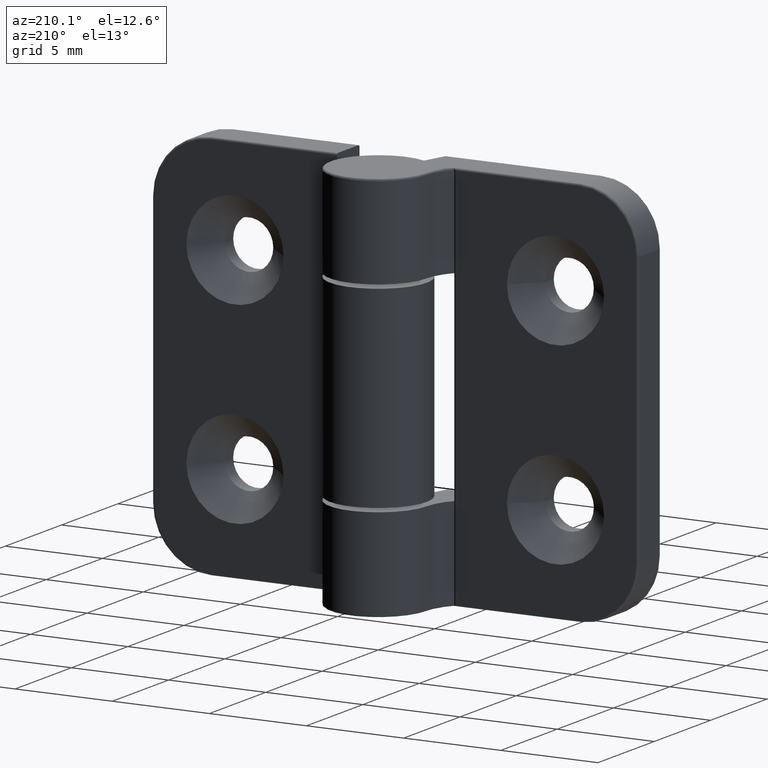
[diagram: clean part render]
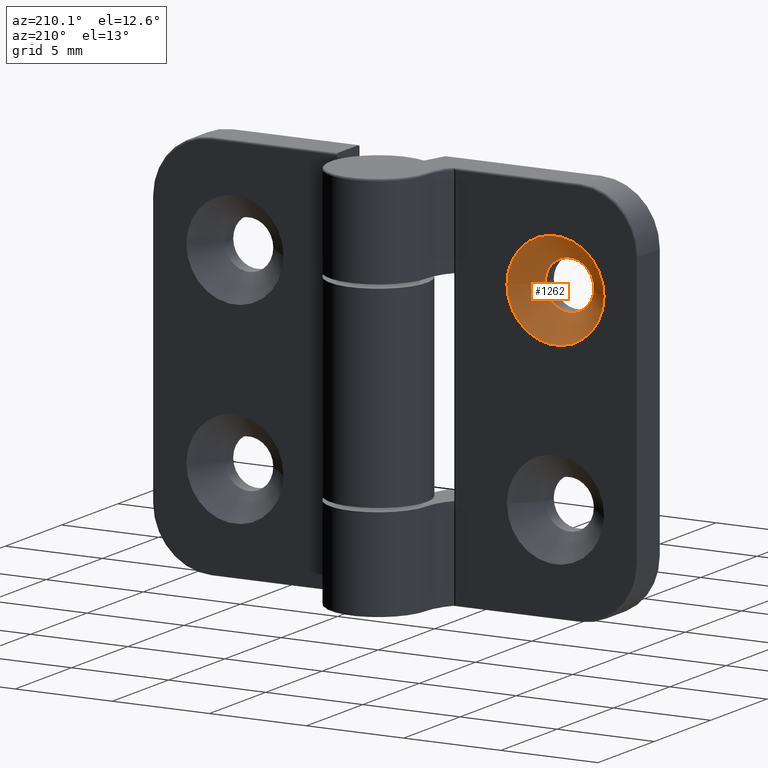
[diagram: same view with one face highlighted and labeled with its STEP entity id]
A machine part, auxiliary view. The second image highlights one B-rep face of the part: STEP entity #1262.
In plain terms, the highlighted conical surface has half-angle 45 deg.
Its self-contained STEP definition (entity closure, byte-faithful):
#35=CONICAL_SURFACE('',#1396,1.875,45.);
#60=FACE_BOUND('',#232,.T.);
#144=FACE_OUTER_BOUND('',#231,.T.);
#231=EDGE_LOOP('',(#996));
#232=EDGE_LOOP('',(#997));
#461=CIRCLE('',#1323,2.5);
#499=CIRCLE('',#1397,1.25);
#558=VERTEX_POINT('',#1985);
#605=VERTEX_POINT('',#2202);
#674=EDGE_CURVE('',#558,#558,#461,.T.);
#752=EDGE_CURVE('',#605,#605,#499,.T.);
#996=ORIENTED_EDGE('',*,*,#674,.F.);
#997=ORIENTED_EDGE('',*,*,#752,.F.);
#1262=ADVANCED_FACE('',(#144,#60),#35,.F.);
#1323=AXIS2_PLACEMENT_3D('',#1986,#1523,#1524);
#1396=AXIS2_PLACEMENT_3D('',#2201,#1699,#1700);
#1397=AXIS2_PLACEMENT_3D('',#2203,#1701,#1702);
#1523=DIRECTION('center_axis',(0.,-1.,0.));
#1524=DIRECTION('ref_axis',(1.,0.,0.));
#1699=DIRECTION('center_axis',(0.,1.,0.));
#1700=DIRECTION('ref_axis',(1.,0.,0.));
#1701=DIRECTION('center_axis',(0.,1.,0.));
#1702=DIRECTION('ref_axis',(1.,0.,0.));
#1985=CARTESIAN_POINT('',(-5.75,2.,5.));
#1986=CARTESIAN_POINT('Origin',(-8.25,2.,5.));
#2201=CARTESIAN_POINT('Origin',(-8.25,1.375,5.));
#2202=CARTESIAN_POINT('',(-7.,0.75,5.));
#2203=CARTESIAN_POINT('Origin',(-8.25,0.75,5.));